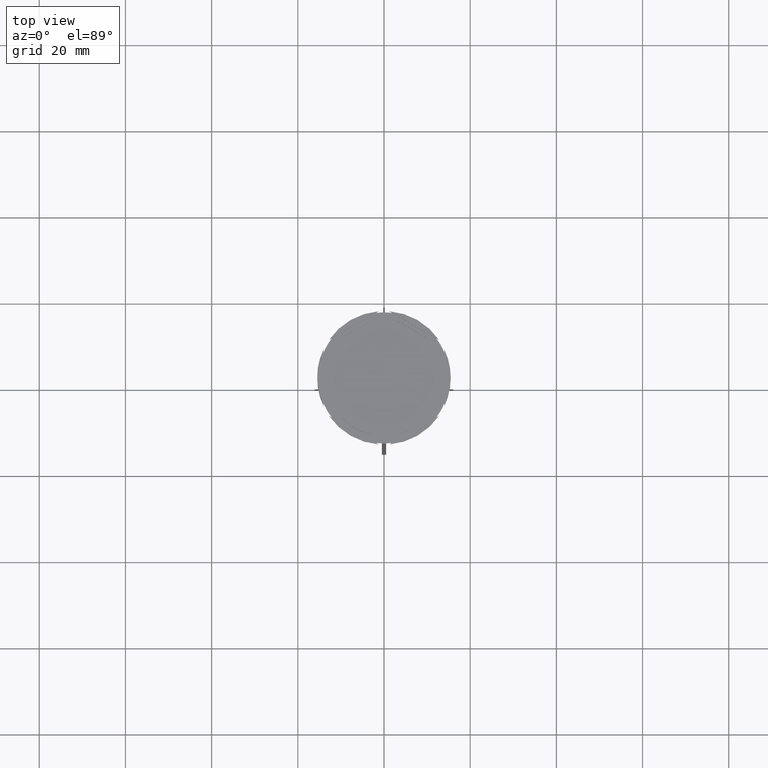
[diagram: clean part render]
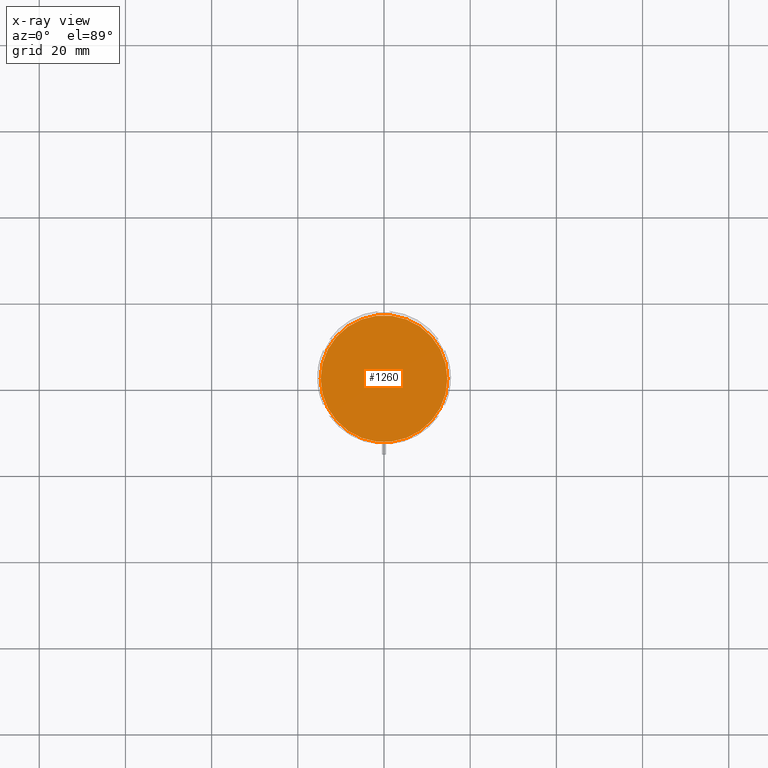
[diagram: x-ray — body ghosted, one internal face saturated and labeled with its STEP entity id]
A machine part, top view, then the same camera in x-ray: the body is ghosted and one INTERNAL B-rep face — a face not visible from any outside direction — is saturated and labeled: STEP entity #1260.
In plain terms, the highlighted planar face has unit normal (0, 0, -1).
Its self-contained STEP definition (entity closure, byte-faithful):
#110 = CARTESIAN_POINT ( 'NONE',  ( 0.000000000000000000, 0.000000000000000000, -12.00000000000000000 ) ) ;
#174 = FACE_OUTER_BOUND ( 'NONE', #2678, .T. ) ;
#195 = CARTESIAN_POINT ( 'NONE',  ( 0.000000000000000000, 0.000000000000000000, -12.00000000000000000 ) ) ;
#315 = CARTESIAN_POINT ( 'NONE',  ( -14.70000000000000107, 0.000000000000000000, -12.00000000000000000 ) ) ;
#523 = EDGE_CURVE ( 'NONE', #2840, #1766, #2653, .T. ) ;
#608 = AXIS2_PLACEMENT_3D ( 'NONE', #2560, #740, #2029 ) ;
#740 = DIRECTION ( 'NONE',  ( -0.000000000000000000, -0.000000000000000000, 1.000000000000000000 ) ) ;
#748 = AXIS2_PLACEMENT_3D ( 'NONE', #195, #2184, #861 ) ;
#849 = PLANE ( 'NONE',  #748 ) ;
#861 = DIRECTION ( 'NONE',  ( -1.000000000000000000, 0.000000000000000000, -0.000000000000000000 ) ) ;
#1082 = CIRCLE ( 'NONE', #608, 14.70000000000000107 ) ;
#1218 = DIRECTION ( 'NONE',  ( -1.000000000000000000, 0.000000000000000000, 0.000000000000000000 ) ) ;
#1248 = ORIENTED_EDGE ( 'NONE', *, *, #523, .T. ) ;
#1260 = ADVANCED_FACE ( 'NONE', ( #174 ), #849, .F. ) ;
#1353 = AXIS2_PLACEMENT_3D ( 'NONE', #110, #1647, #1218 ) ;
#1562 = CARTESIAN_POINT ( 'NONE',  ( 14.70000000000000107, 1.818600496733819553E-15, -12.00000000000000000 ) ) ;
#1647 = DIRECTION ( 'NONE',  ( -0.000000000000000000, -0.000000000000000000, 1.000000000000000000 ) ) ;
#1766 = VERTEX_POINT ( 'NONE', #1562 ) ;
#2029 = DIRECTION ( 'NONE',  ( -1.000000000000000000, 0.000000000000000000, 0.000000000000000000 ) ) ;
#2184 = DIRECTION ( 'NONE',  ( 0.000000000000000000, 0.000000000000000000, -1.000000000000000000 ) ) ;
#2274 = ORIENTED_EDGE ( 'NONE', *, *, #2862, .T. ) ;
#2560 = CARTESIAN_POINT ( 'NONE',  ( 0.000000000000000000, 0.000000000000000000, -12.00000000000000000 ) ) ;
#2653 = CIRCLE ( 'NONE', #1353, 14.70000000000000107 ) ;
#2678 = EDGE_LOOP ( 'NONE', ( #1248, #2274 ) ) ;
#2840 = VERTEX_POINT ( 'NONE', #315 ) ;
#2862 = EDGE_CURVE ( 'NONE', #1766, #2840, #1082, .T. ) ;